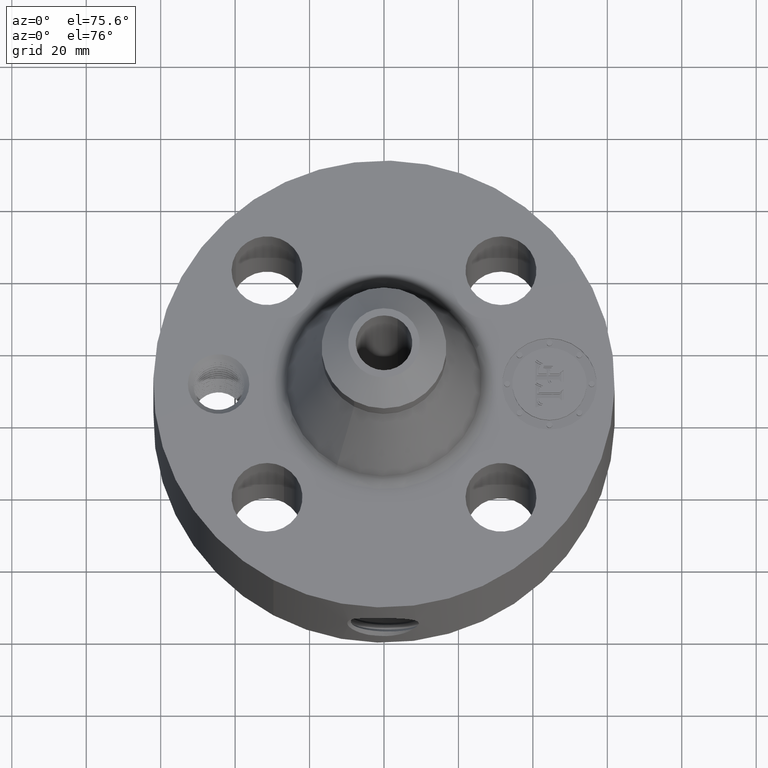
[diagram: clean part render]
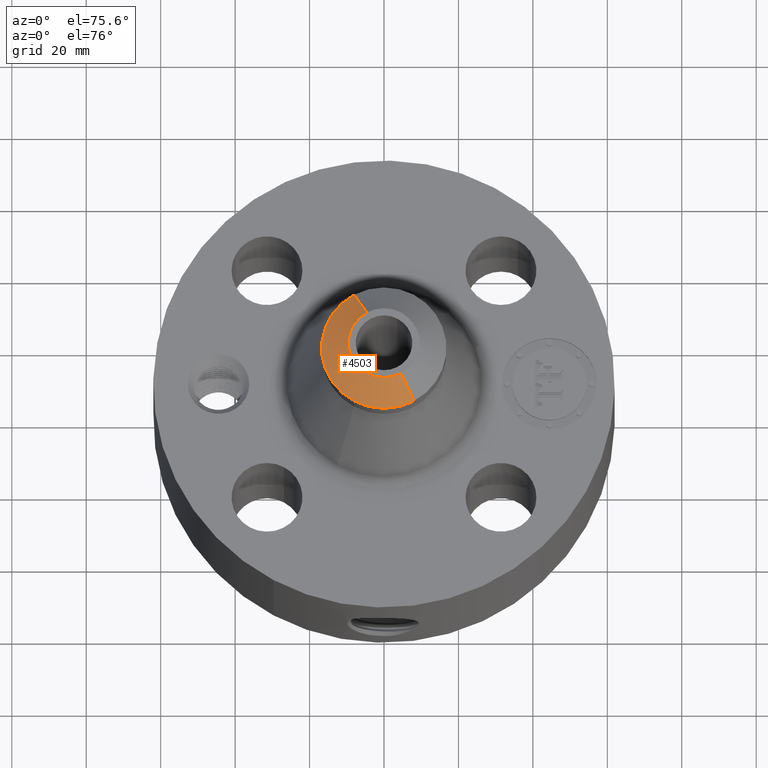
[diagram: same view with one face highlighted and labeled with its STEP entity id]
A machine part, auxiliary view. The second image highlights one B-rep face of the part: STEP entity #4503.
In plain terms, the highlighted conical surface has half-angle 52.5 deg.
Its self-contained STEP definition (entity closure, byte-faithful):
#3213=AXIS2_PLACEMENT_3D('Circle Axis2P3D',#3211,#3212,$) ;
#3226=AXIS2_PLACEMENT_3D('Circle Axis2P3D',#3224,#3225,$) ;
#4074=AXIS2_PLACEMENT_3D('Circle Axis2P3D',#4072,#4073,$) ;
#4476=AXIS2_PLACEMENT_3D('Cone Axis2P3D',#4473,#4474,#4475) ;
#3194=CARTESIAN_POINT('Vertex',(-0.31642085548,-0.57920449085,3.28379806872)) ;
#3208=CARTESIAN_POINT('Vertex',(0.31642085548,-0.57920449085,3.28379806872)) ;
#3211=CARTESIAN_POINT('Axis2P3D Location',(0.,0.,3.28379806872)) ;
#3224=CARTESIAN_POINT('Axis2P3D Location',(0.,0.,3.28379806872)) ;
#3228=CARTESIAN_POINT('Vertex',(-0.31642085548,0.57920449085,3.28379806872)) ;
#4067=CARTESIAN_POINT('Vertex',(0.181337991222,-0.331936966412,3.50000000001)) ;
#4069=CARTESIAN_POINT('Vertex',(-0.181337991222,0.331936966412,3.50000000001)) ;
#4072=CARTESIAN_POINT('Axis2P3D Location',(0.,0.,3.50000000001)) ;
#4473=CARTESIAN_POINT('Axis2P3D Location',(0.,0.,3.50000000001)) ;
#4478=CARTESIAN_POINT('Line Origine',(-0.248879423351,0.455570728631,3.39189903437)) ;
#4483=CARTESIAN_POINT('Line Origine',(0.248879423351,-0.455570728631,3.39189903437)) ;
#3212=DIRECTION('Axis2P3D Direction',(0.,0.,-0.0393700787402)) ;
#3225=DIRECTION('Axis2P3D Direction',(0.,0.,-0.0393700787402)) ;
#4073=DIRECTION('Axis2P3D Direction',(0.,0.,-0.0393700787402)) ;
#4474=DIRECTION('Axis2P3D Direction',(-0.,-0.,-0.0393700787402)) ;
#4475=DIRECTION('Axis2P3D XDirection',(0.0188750212049,-0.0345504945626,0.)) ;
#4479=DIRECTION('Vector Direction',(-0.014974561121,0.02741075027,-0.023966985394)) ;
#4484=DIRECTION('Vector Direction',(0.014974561121,-0.02741075027,-0.023966985394)) ;
#4480=VECTOR('Line Direction',#4479,0.0393700787402) ;
#4485=VECTOR('Line Direction',#4484,0.0393700787402) ;
#4497=ORIENTED_EDGE('',*,*,#4487,.F.) ;
#4498=ORIENTED_EDGE('',*,*,#4076,.F.) ;
#4499=ORIENTED_EDGE('',*,*,#4482,.T.) ;
#4500=ORIENTED_EDGE('',*,*,#3230,.T.) ;
#4501=ORIENTED_EDGE('',*,*,#3215,.F.) ;
#4503=ADVANCED_FACE('PartBody',(#4502),#4477,.T.) ;
#3214=CIRCLE('generated circle',#3213,0.660000000003) ;
#3227=CIRCLE('generated circle',#3226,0.660000000003) ;
#4075=CIRCLE('generated circle',#4074,0.378240157482) ;
#4477=CONICAL_SURFACE('Cone',#4476,0.378240157481,0.916297857297) ;
#3215=EDGE_CURVE('',#3209,#3195,#3214,.T.) ;
#3230=EDGE_CURVE('',#3229,#3195,#3227,.F.) ;
#4076=EDGE_CURVE('',#4070,#4068,#4075,.F.) ;
#4482=EDGE_CURVE('',#4070,#3229,#4481,.T.) ;
#4487=EDGE_CURVE('',#4068,#3209,#4486,.T.) ;
#4496=EDGE_LOOP('',(#4497,#4498,#4499,#4500,#4501)) ;
#4502=FACE_OUTER_BOUND('',#4496,.T.) ;
#4481=LINE('Line',#4478,#4480) ;
#4486=LINE('Line',#4483,#4485) ;
#3195=VERTEX_POINT('',#3194) ;
#3209=VERTEX_POINT('',#3208) ;
#3229=VERTEX_POINT('',#3228) ;
#4068=VERTEX_POINT('',#4067) ;
#4070=VERTEX_POINT('',#4069) ;